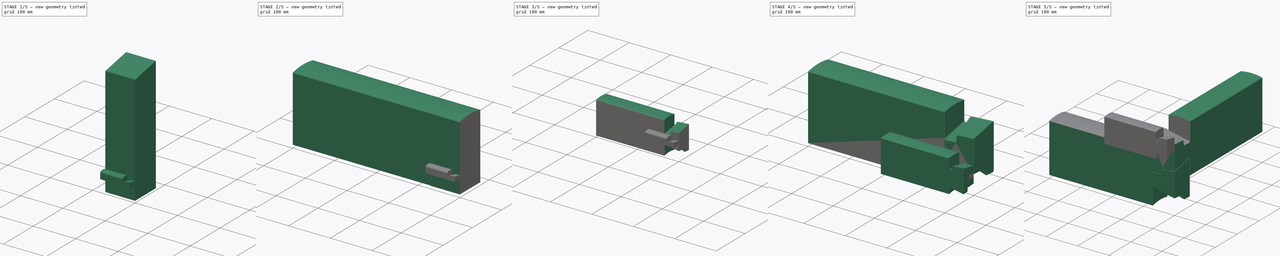
[diagram: build sequence overview — one tinted view per stage of 5, left to right]
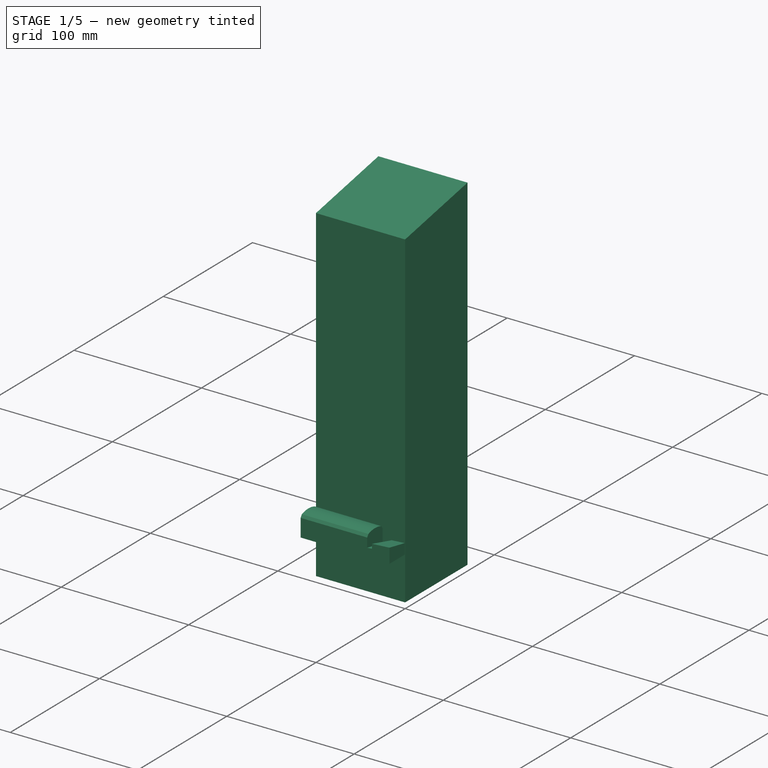
[diagram: stage 1 of 5 — iso view after this stage's code; geometry added in this stage tinted green]
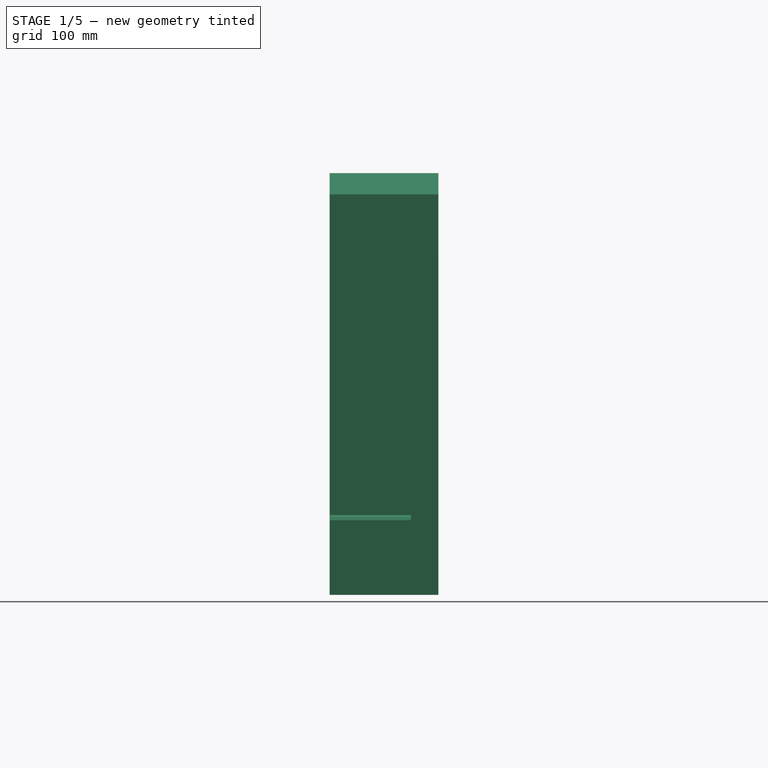
[diagram: stage 1 of 5 — front view after this stage's code; geometry added in this stage tinted green]
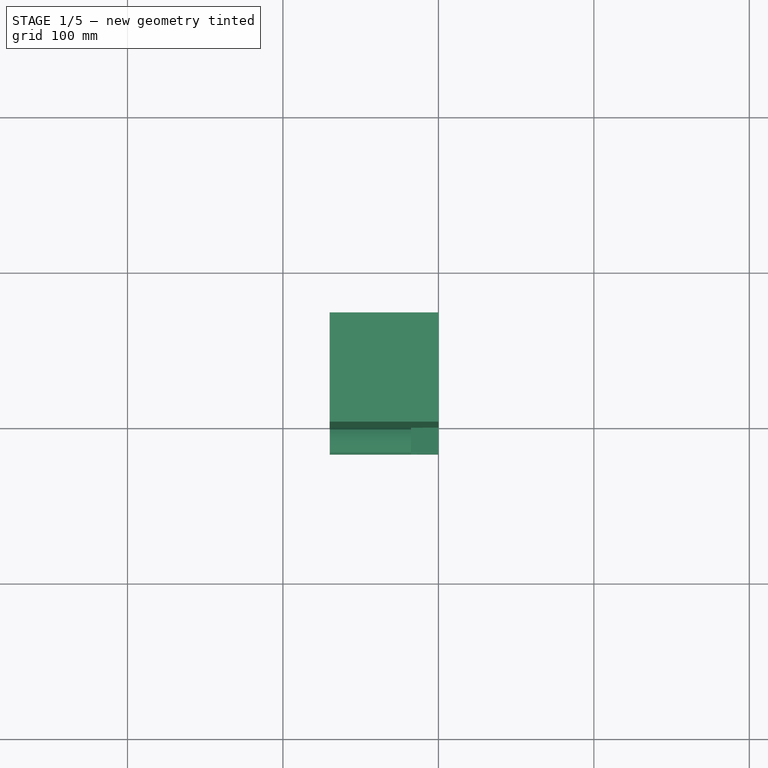
[diagram: stage 1 of 5 — top view after this stage's code; geometry added in this stage tinted green]
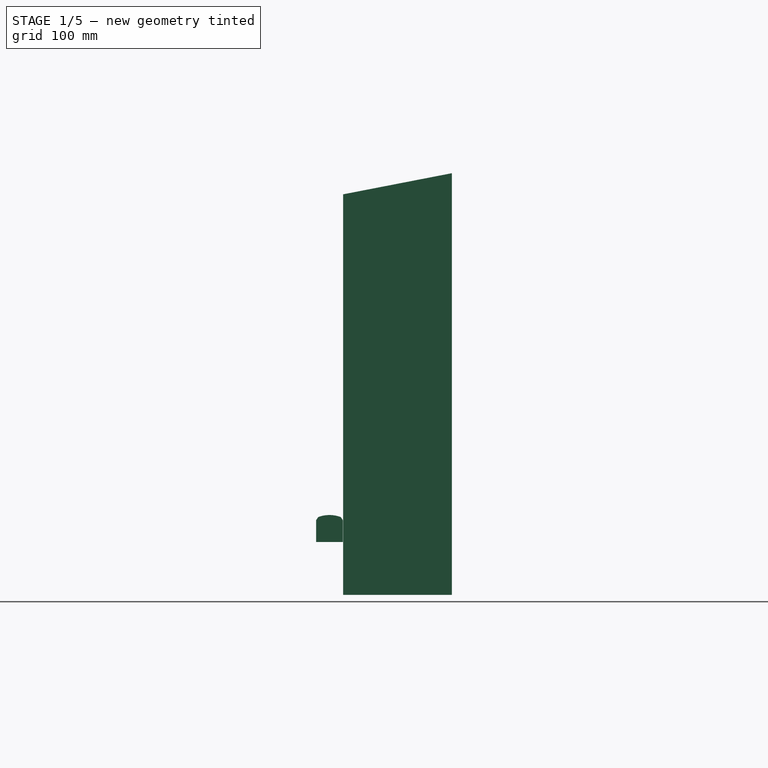
[diagram: stage 1 of 5 — right view after this stage's code; geometry added in this stage tinted green]
FCSTD DOCUMENT  (FreeCAD 0.19R24276 (Git))
Label: kvenlaft-parametric-freecad-model
License: Creative Commons Attribution-ShareAlike
LicenseURL: http://creativecommons.org/licenses/by-sa/4.0/
objects: Sketcher::SketchObject×5, PartDesign::Body×5, Part::Cut×4, Part::FeaturePython×4, PartDesign::Pad×3, Part::Mirroring×3, PartDesign::Chamfer×2, Part::Feature×2, App::FeaturePython×1, PartDesign::AdditiveLoft×1, PartDesign::FeatureBase×1, PartDesign::Fillet×1, Part::Offset×1, App::DocumentObjectGroup×1
note: 39 computed .brp shape members not serialized (recipe doc carries the construction recipe); baked Part::Feature solids carry a one-line shape summary decoded from their .brp

FEATURE [Sketcher::SketchObject] Sketch001  label="Joint cutter profile1"
  FullyConstrained = true
  MapMode = 5
  Placement = pos=(0,0,0) rot=(1,0,0;1.5708rad)
  Support = -> [XZ_Plane001]
  expr: Constraints[19] = dd.ddTimber_width
  expr: Constraints[20] = dd.ddBottom_angle
  expr: Constraints[15] = dd.ddTop_slot_depth_ratio * dd.ddTimber_heigth
  expr: Constraints[16] = dd.ddTimber_heigth
  expr: Constraints[14] = dd.ddTimber_heigth * dd.ddTop_joint_placement_ratio + dd.ddTimber_heigth
  expr: Constraints[9] = dd.ddTop_angle
  expr: Constraints[13] = -dd.ddTimber_width * dd.ddSlot_position_ratio
  expr: Constraints[11] = -dd.ddTimber_width
  expr: Constraints[10] = dd.ddTop_angle
  sketch-geometry (7):
    g0: LineSegment StartX=-70 StartY=257.6 StartZ=0 EndX=-70 EndY=96.6 EndZ=0
    g1: LineSegment StartX=-70 StartY=96.6 StartZ=0 EndX=-42 EndY=98.558 EndZ=0
    g2: LineSegment StartX=-42 StartY=98.558 StartZ=0 EndX=-42 EndY=114.658 EndZ=0
    g3: LineSegment StartX=-42 StartY=114.658 StartZ=0 EndX=0 EndY=117.595 EndZ=0
    g4: LineSegment StartX=0 StartY=117.595 StartZ=0 EndX=0 EndY=257.6 EndZ=0
    g5: LineSegment StartX=0 StartY=257.6 StartZ=0 EndX=-70 EndY=257.6 EndZ=0
    g6: LineSegment StartX=0 StartY=0 StartZ=0 EndX=70 EndY=13.6066 EndZ=0
  constraints (22):
    c: Vertical(g0)
    c: Coincident(g0,g1)
    c: Coincident(g1,g2)
    c: Coincident(g2,g3)
    c: Coincident(g3,g4)
    c: Vertical(g4)
    c: Coincident(g4,g5)
    c: Coincident(g5,g0)
    c: PointOnObject(g4,g-2)
    c: Angle(g-1,g3) = 0.0698132
    c: Angle(g-1,g1) = 0.0698132
    c: DistanceX(g-2,g0) = -70
    c: Angle(g2,g-2) = 0
    c: DistanceX(g-2,g2) = -42
    c: DistanceY(g-1,g4) = 257.6
    c: Distance(g2) = 16.1
    c: Distance(g0) = 161
    c: Horizontal(g5)
    c: Coincident(g6,g-1)
    c: DistanceX(g-2,g6) = 70
    c: Angle(g-1,g6) = 0.191986
    c: DistanceY(g-1,g6) = 13.6066  'heigth'
FEATURE [Sketcher::SketchObject] Sketch002  label="Joint cutter profile2"
  AttachmentOffset = pos=(0,13.6066,-70) rot=(0,0,1;0rad)
  FullyConstrained = true
  MapMode = 5
  Placement = pos=(0,70,13.6066) rot=(1,0,0;1.5708rad)
  Support = -> [XZ_Plane001]
  expr: .AttachmentOffset.Base.y = <<Joint cutter profile1>>.Constraints.heigth
  expr: Constraints[10] = dd.ddTop_angle
  expr: Constraints[11] = -dd.ddTimber_width
  expr: .AttachmentOffset.Base.z = -dd.ddTimber_width
  expr: Constraints[13] = -dd.ddTimber_width * dd.ddSlot_position_ratio
  expr: Constraints[9] = dd.ddTop_angle
  expr: Constraints[14] = dd.ddTimber_heigth * dd.ddTop_joint_placement_ratio + dd.ddTimber_heigth
  expr: Constraints[16] = dd.ddTimber_heigth
  expr: Constraints[15] = dd.ddTop_slot_depth_ratio * dd.ddTimber_heigth
  expr: Constraints[25] = -dd.ddTimber_width + (dd.ddTimber_width - dd.ddTimber_width * dd.ddSlot_position_ratio) * dd.ddWedge_ratio
  sketch-geometry (9):
    g0: LineSegment StartX=-70 StartY=257.6 StartZ=0 EndX=-70 EndY=96.6 EndZ=0
    g1: LineSegment StartX=-70 StartY=96.6 StartZ=0 EndX=-42 EndY=98.558 EndZ=0
    g2: LineSegment StartX=-42 StartY=98.558 StartZ=0 EndX=-42 EndY=114.658 EndZ=0
    g3: LineSegment StartX=-42 StartY=114.658 StartZ=0 EndX=0 EndY=117.595 EndZ=0
    g4: LineSegment StartX=0 StartY=117.595 StartZ=0 EndX=0 EndY=257.6 EndZ=0
    g5: LineSegment StartX=0 StartY=257.6 StartZ=0 EndX=-70 EndY=257.6 EndZ=0
    g6: LineSegment StartX=0 StartY=117.595 StartZ=0 EndX=-56 EndY=113.679 EndZ=0
    g7: LineSegment StartX=-56 StartY=113.679 StartZ=0 EndX=-56 EndY=97.579 EndZ=0
    g8: LineSegment StartX=-56 StartY=97.579 StartZ=0 EndX=-70 EndY=96.6 EndZ=0
  constraints (26):
    c: Vertical(g0)
    c: Coincident(g0,g1)
    c: Coincident(g1,g2)
    c: Coincident(g2,g3)
    c: Coincident(g3,g4)
    c: Vertical(g4)
    c: Coincident(g4,g5)
    c: Coincident(g5,g0)
    c: PointOnObject(g4,g-2)
    c: Angle(g-1,g3) = 0.0698132
    c: Angle(g-1,g1) = 0.0698132
    c: DistanceX(g-2,g0) = -70
    c: Angle(g2,g-2) = 0
    c: DistanceX(g-2,g2) = -42
    c: DistanceY(g-1,g4) = 257.6
    c: Distance(g2) = 16.1
    c: Distance(g0) = 161
    c: Horizontal(g5)
    c: Coincident(g4,g6)
    c: PointOnObject(g6,g3)
    c: Coincident(g6,g7)
    c: PointOnObject(g7,g1)
    c: Coincident(g7,g8)
    c: Coincident(g8,g0)
    c: Vertical(g7)
    c: DistanceX(g-2,g6) = -56
FEATURE [PartDesign::AdditiveLoft] AdditiveLoft
  Closed = false
  Placement = pos=(0,0,0) rot=(1,0,0;1.5708rad)
  Profile = -> Sketch001
  Ruled = false
  Sections = -> [Sketch002]
FEATURE [Sketcher::SketchObject] Sketch009
  FullyConstrained = true
  MapMode = 5
  Placement = pos=(0,0,0) rot=(0.57735,0.57735,0.57735;2.0944rad)
  Support = -> [YZ_Plane007]
  expr: Constraints[9] = dd.ddTimber_width
  expr: Constraints[10] = dd.ddTimber_heigth
  sketch-geometry (4):
    g0: LineSegment StartX=0 StartY=0 StartZ=0 EndX=70 EndY=0 EndZ=0
    g1: LineSegment StartX=70 StartY=0 StartZ=0 EndX=70 EndY=161 EndZ=0
    g2: LineSegment StartX=70 StartY=161 StartZ=0 EndX=0 EndY=161 EndZ=0
    g3: LineSegment StartX=0 StartY=161 StartZ=0 EndX=0 EndY=0 EndZ=0
  constraints (11):
    c: Coincident(g0,g1)
    c: Coincident(g1,g2)
    c: Coincident(g2,g3)
    c: Coincident(g3,g0)
    c: Horizontal(g0)
    c: Horizontal(g2)
    c: Vertical(g1)
    c: Vertical(g3)
    c: Coincident(g0,g-1)
    c: DistanceX(g-2,g1) = 70
    c: DistanceY(g-1,g2) = 161
FEATURE [PartDesign::Pad] Pad001
  Direction = (1,1,1)
  Length = 70
  Length2 = 100
  Placement = pos=(0,0,0) rot=(0.57735,0.57735,0.57735;2.0944rad)
  Profile = -> Sketch009
  Reversed = true
  Type = 0
  expr: Length = dd.ddTimber_width
FEATURE [Part::Feature] Part__Mirroring003  label="Offset (Mirror #3)001"
  Placement = pos=(0,0,16.5) rot=(0,0,1;0rad)
  shape: bbox 69.76 x 17.26 x 34 mm, 18 faces (baked)
  expr: .Placement.Base.z = 33 / 2
FEATURE [Sketcher::SketchObject] Sketch010
  FullyConstrained = false
  MapMode = 5
  Support = -> [XY_Plane008]
  sketch-geometry (4):
    g0: LineSegment StartX=-87.5607 StartY=31.3298 StartZ=0 EndX=17.935 EndY=31.3298 EndZ=0
    g1: LineSegment StartX=17.935 StartY=31.3298 StartZ=0 EndX=17.935 EndY=-30.5125 EndZ=0
    g2: LineSegment StartX=17.935 StartY=-30.5125 StartZ=0 EndX=-87.5607 EndY=-30.5125 EndZ=0
    g3: LineSegment StartX=-87.5607 StartY=-30.5125 StartZ=0 EndX=-87.5607 EndY=31.3298 EndZ=0
  constraints (8):
    c: Coincident(g0,g1)
    c: Coincident(g1,g2)
    c: Coincident(g2,g3)
    c: Coincident(g3,g0)
    c: Horizontal(g0)
    c: Horizontal(g2)
    c: Vertical(g1)
    c: Vertical(g3)
FEATURE [PartDesign::Pad] Pad002
  Direction = (1,1,1)
  Length = 34
  Length2 = 100
  Profile = -> Sketch010
  Type = 0
FEATURE [PartDesign::Body] Body002006
  Group = -> [Sketch010,Pad002]
  Origin = -> Origin008
  Tip = -> Pad002
FEATURE [Part::Cut] Cut004
  Base = -> Part__Mirroring003
  Tool = -> Body002006
FEATURE [App::DocumentObjectGroup] Group  label="Scale model"
  Group = -> [Offset001,Part__Mirroring,Cut004]
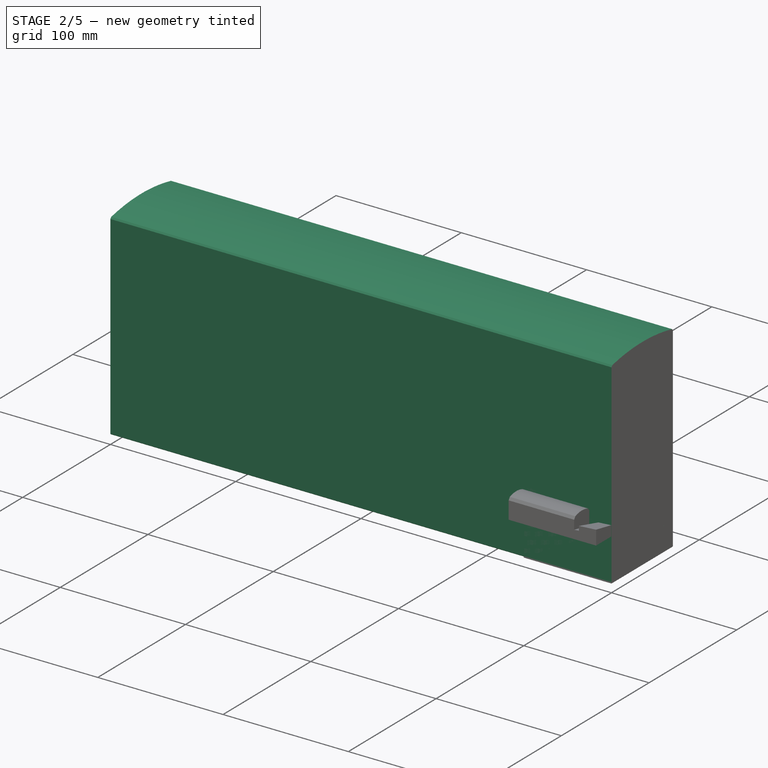
[diagram: stage 2 of 5 — iso view after this stage's code; geometry added in this stage tinted green]
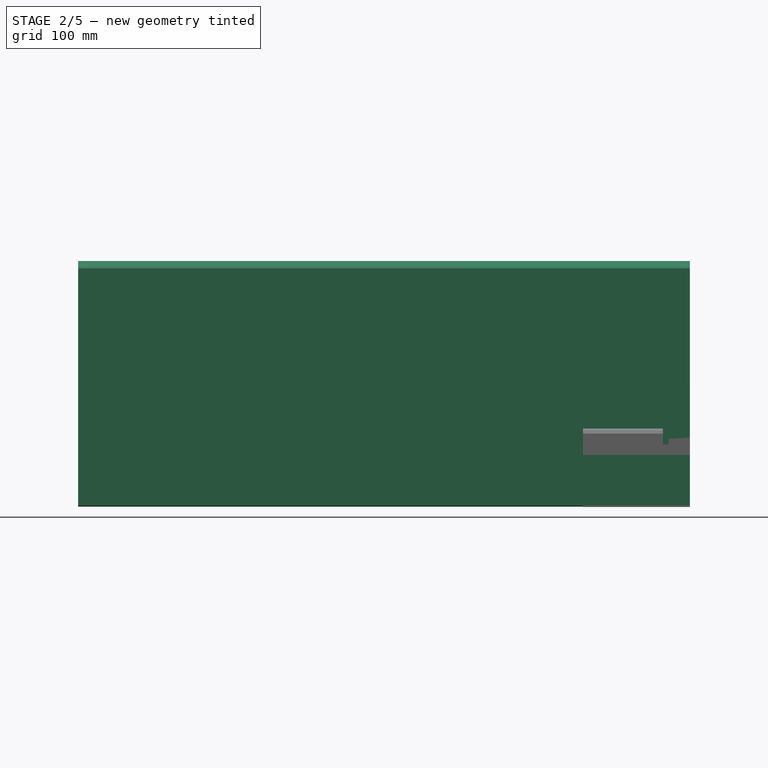
[diagram: stage 2 of 5 — front view after this stage's code; geometry added in this stage tinted green]
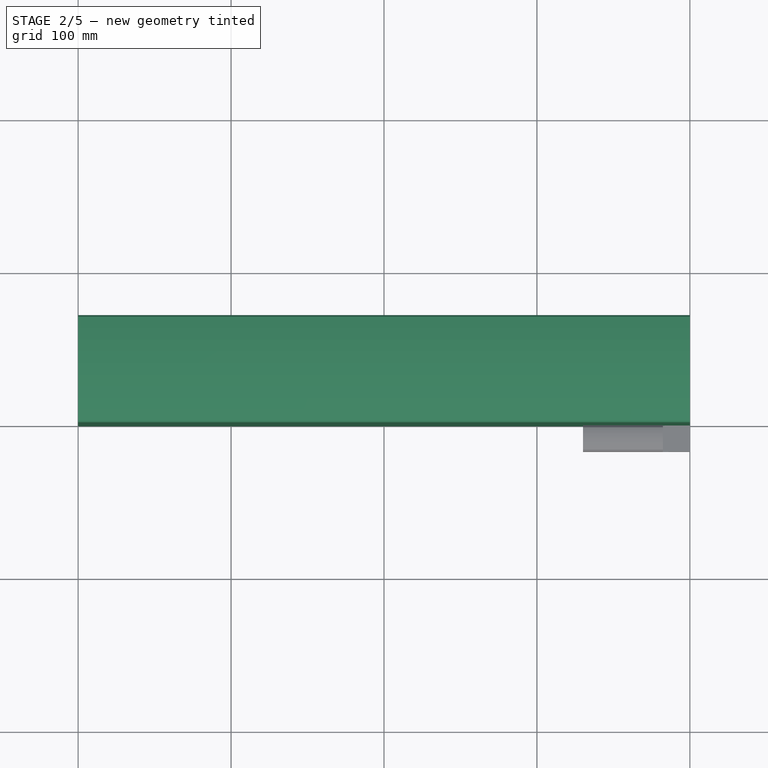
[diagram: stage 2 of 5 — top view after this stage's code; geometry added in this stage tinted green]
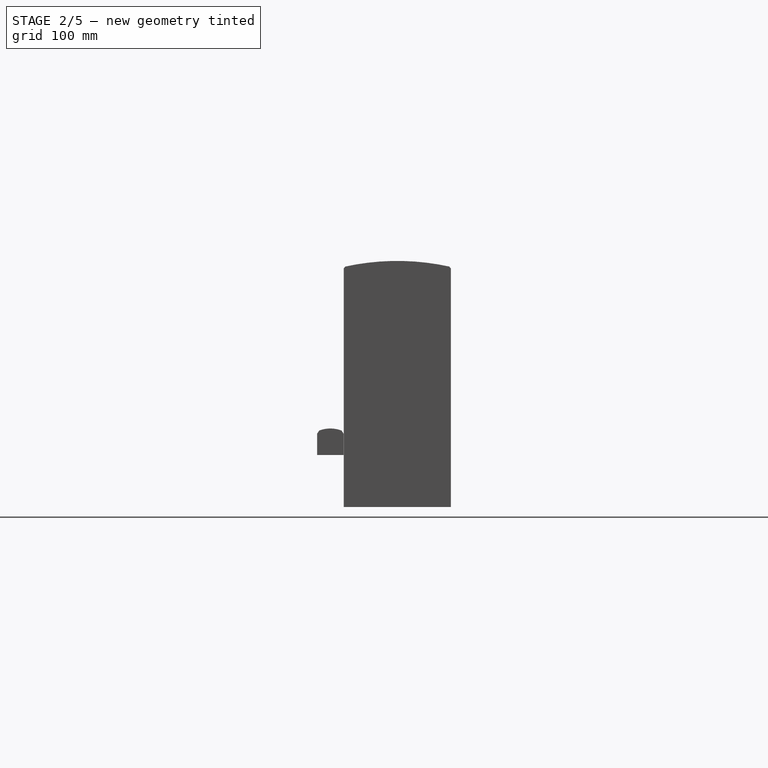
[diagram: stage 2 of 5 — right view after this stage's code; geometry added in this stage tinted green]
FEATURE [App::FeaturePython] dd  label="Parameters"  # WARN: FeaturePython — macro-defined, semantics opaque (R4)
  DynamicData = Created with DynamicData (v2.31) workbench. | This is a simple container object built | for holding custom properties.  Worbench | installation is not required to use the | container object -- instead only for | adding / removing custom properties. | (But this can also be done via scripting.)
  ddArc_depth = 4
  ddBottom_angle = 11
  ddChamfer_size = 1
  ddFillet_radius = 4
  ddMating_arc_margin_top = 0.1
  ddMating_arc_ratio = 3
  ddSlot_position_ratio = 0.6
  ddTimber_heigth = 161
  ddTimber_length = 400
  ddTimber_width = 70
  ddTop_angle = 4
  ddTop_joint_placement_ratio = 0.6
  ddTop_slot_depth_ratio = 0.1
  ddWedge_ratio = 0.5
FEATURE [Sketcher::SketchObject] Sketch
  FullyConstrained = true
  MapMode = 5
  Placement = pos=(0,0,0) rot=(0.57735,0.57735,0.57735;2.0944rad)
  Support = -> [YZ_Plane]
  expr: .Constraints.finalheigth = dd.ddTimber_heigth - dd.ddArc_depth
  expr: Constraints[12] = dd.ddTimber_heigth - dd.ddMating_arc_margin_top
  expr: Constraints[11] = dd.ddTimber_width
  expr: Constraints[20] = dd.ddArc_depth - dd.ddMating_arc_margin_top + dd.ddArc_depth * 0.2
  sketch-geometry (6):
    g0: LineSegment StartX=-7.1e-15 StartY=1.42e-14 StartZ=0 EndX=0 EndY=157 EndZ=0
    g1: LineSegment StartX=70 StartY=157 StartZ=0 EndX=70 EndY=0 EndZ=0
    g2: ArcOfCircle CenterX=35 CenterY=1.89872 CenterZ=0 NormalX=0 NormalY=0 NormalZ=1 AngleXU=0 Radius=159.001 StartAngle=1.34885 EndAngle=1.79274
    g3: ArcOfCircle CenterX=35 CenterY=-127.969 CenterZ=0 NormalX=0 NormalY=0 NormalZ=1 AngleXU=0 Radius=132.669 StartAngle=1.30382 EndAngle=1.83777
    g4: LineSegment StartX=0 StartY=160.9 StartZ=0 EndX=70 EndY=160.9 EndZ=0
    g5: LineSegment StartX=0 StartY=4.7 StartZ=0 EndX=70 EndY=4.7 EndZ=0
  constraints (21):
    c: PointOnObject(g0,g-2)
    c: Vertical(g1)
    c: Coincident(g2,g0)
    c: Coincident(g2,g1)
    c: Coincident(g3,g0)
    c: Coincident(g3,g1)
    c: Coincident(g0,g-1)
    c: PointOnObject(g1,g-1)
    c: Horizontal(g1,g0)
    c: PointOnObject(g4,g-2)
    c: Horizontal(g4)
    c: DistanceX(g-2,g4) = 70
    c: DistanceY(g-1,g4) = 160.9
    c: Tangent(g2,g4)
    c: Vertical(g1,g4)
    c: DistanceY(g-1,g1) = 157  'finalheigth'
    c: PointOnObject(g5,g-2)
    c: Horizontal(g5)
    c: Vertical(g5,g4)
    c: Tangent(g3,g5)
    c: DistanceY(g-1,g5) = 4.7
FEATURE [PartDesign::Pad] Pad
  Direction = (1,1,1)
  Length = 400
  Length2 = 100
  Placement = pos=(0,0,0) rot=(0.57735,0.57735,0.57735;2.0944rad)
  Profile = -> Sketch
  Reversed = true
  Type = 0
  expr: Length = dd.ddTimber_length
FEATURE [PartDesign::Body] Body001  label="Joint cutter"
  Group = -> [Sketch001,Sketch002,AdditiveLoft]
  Origin = -> Origin001
  Tip = -> AdditiveLoft
FEATURE [PartDesign::Chamfer] Chamfer
  Angle = 45
  Base = -> Pad [Edge2,Edge5,Edge1,Edge8]
  BaseFeature = -> Pad
  ChamferType = 0
  FlipDirection = false
  Placement = pos=(0,0,0) rot=(0.57735,0.57735,0.57735;2.0944rad)
  Size = 1
  Size2 = 1
  SupportTransform = false
  expr: Size = dd.ddChamfer_size
FEATURE [Part::Mirroring] Part__Mirroring002  label="Joint cutter (Mirror #3)"
  Base = (0,0,0)
  Normal = (0,1,0)
  Placement = pos=(0,0,-78.5) rot=(0,0,-1;1.5708rad)
  Source = -> Body001
  expr: .Placement.Base.z = -Sketch.Constraints.finalheigth / 2
FEATURE [PartDesign::Body] Body002005  label="Postive shape for second cutter"
  Group = -> [Sketch009,Pad001]
  Origin = -> Origin007
  Tip = -> Pad001
FEATURE [Part::Cut] Cut003  label="Joint cutter 2"
  Base = -> Body002005
  Tool = -> Part__Mirroring002
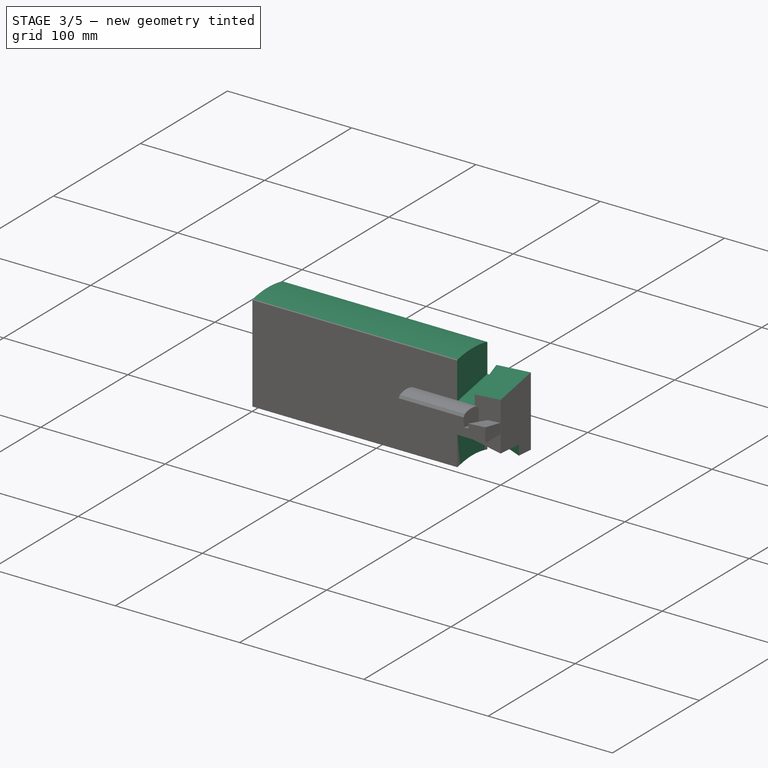
[diagram: stage 3 of 5 — iso view after this stage's code; geometry added in this stage tinted green]
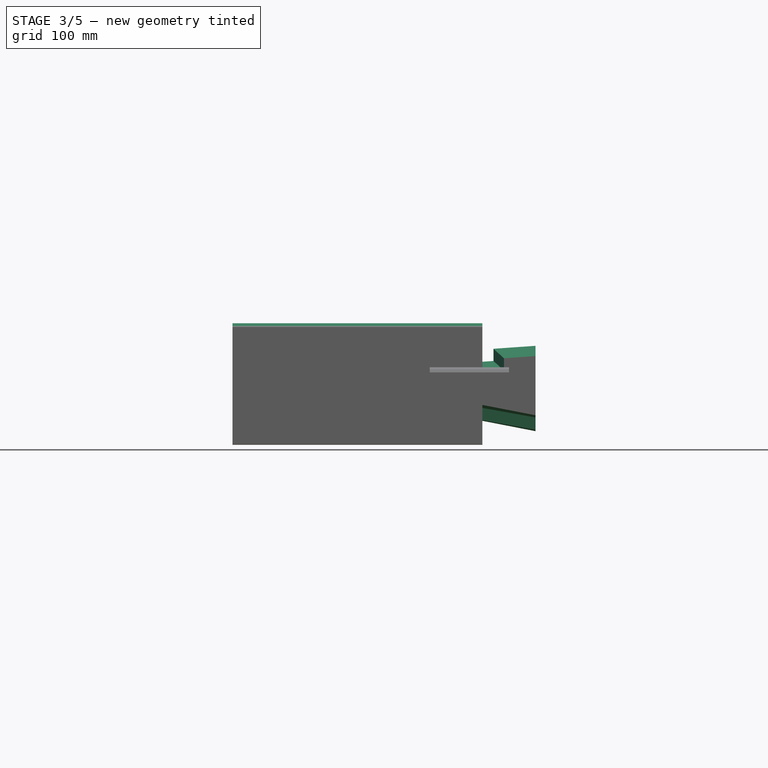
[diagram: stage 3 of 5 — front view after this stage's code; geometry added in this stage tinted green]
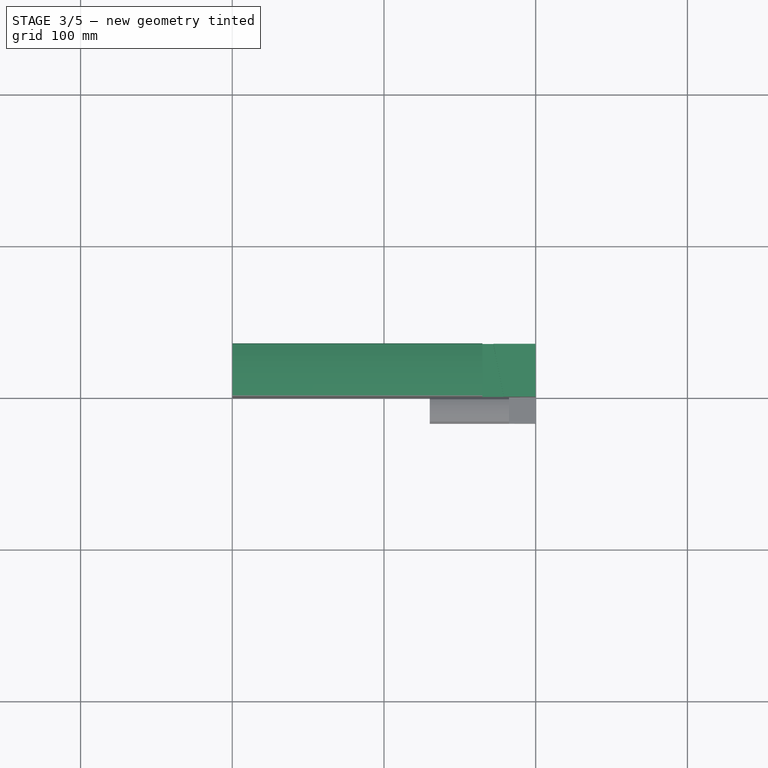
[diagram: stage 3 of 5 — top view after this stage's code; geometry added in this stage tinted green]
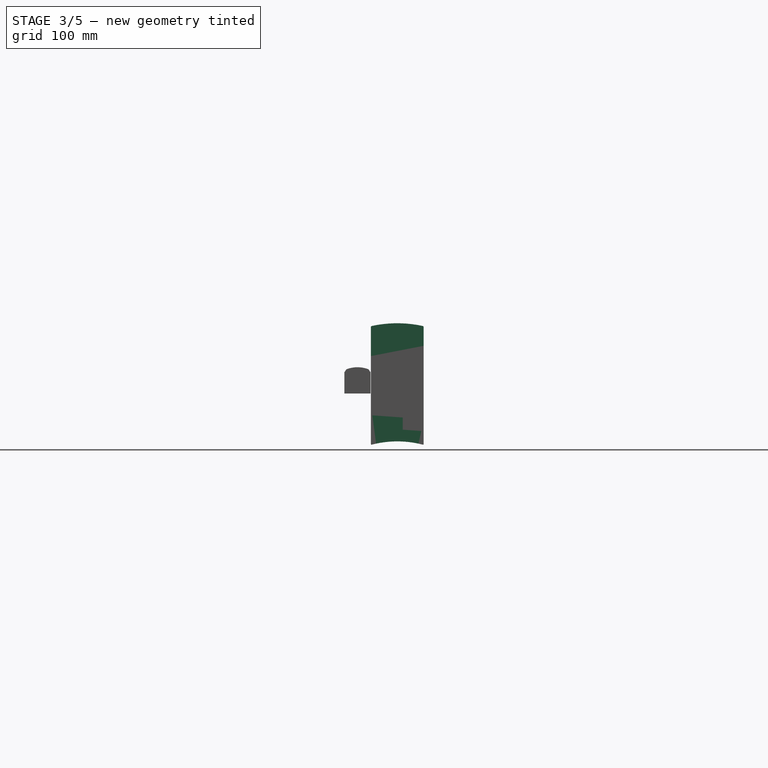
[diagram: stage 3 of 5 — right view after this stage's code; geometry added in this stage tinted green]
FEATURE [PartDesign::Body] Body  label="Timber start extrusion"
  Group = -> [Sketch,Pad,Chamfer]
  Origin = -> Origin
  Tip = -> Chamfer
FEATURE [Part::Cut] Cut  label="Timber with top joint cut"
  Base = -> Body
  Refine = true
  Tool = -> Body001
FEATURE [Part::Cut] Cut001  label="Timber with bottom joint cut"
  Base = -> Cut
  Refine = true
  Tool = -> Cut003
FEATURE [Part::FeaturePython] Clone  label="Timber with fillets002"  # Draft clone (typed FeaturePython)
  AttacherType = Attacher::AttachEngine3D
  Fuse = false
  Objects = -> [Cut001]
  Scale = (0.5,0.5,0.5)
FEATURE [Part::Offset] Offset
  Fill = false
  Intersection = false
  Join = 2
  Mode = 0
  SelfIntersection = false
  Source = -> Clone
  Value = -0.12
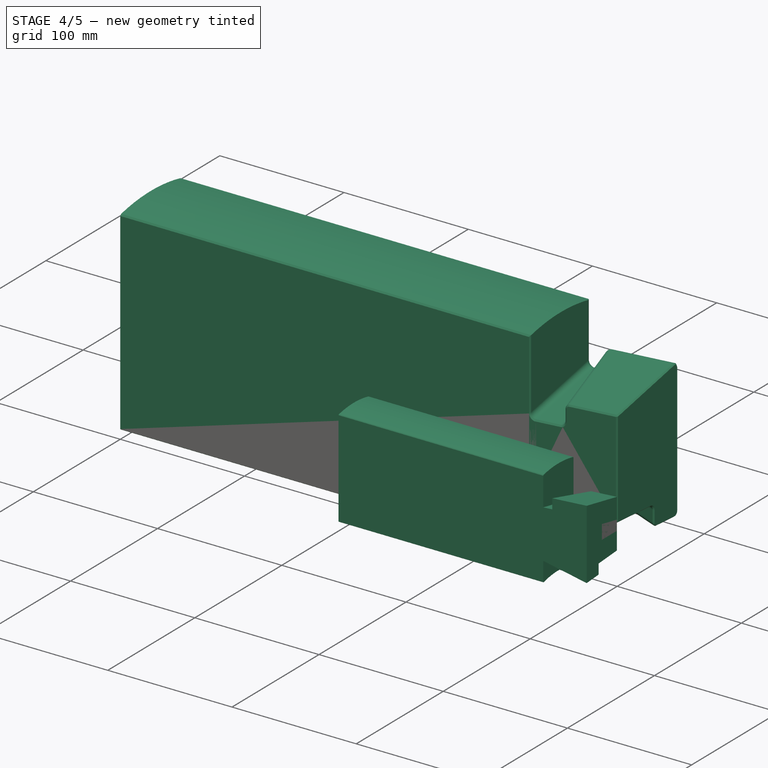
[diagram: stage 4 of 5 — iso view after this stage's code; geometry added in this stage tinted green]
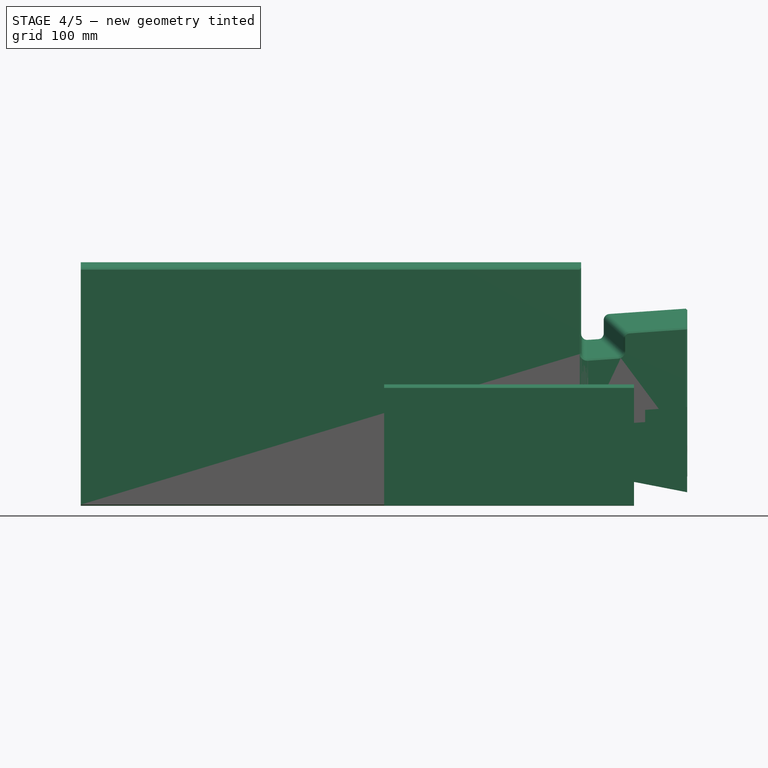
[diagram: stage 4 of 5 — front view after this stage's code; geometry added in this stage tinted green]
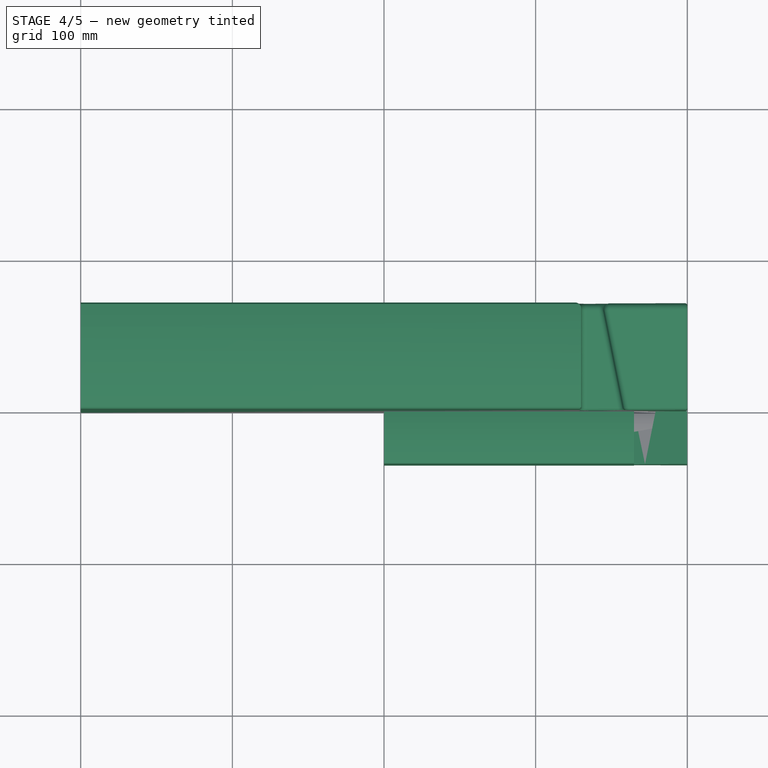
[diagram: stage 4 of 5 — top view after this stage's code; geometry added in this stage tinted green]
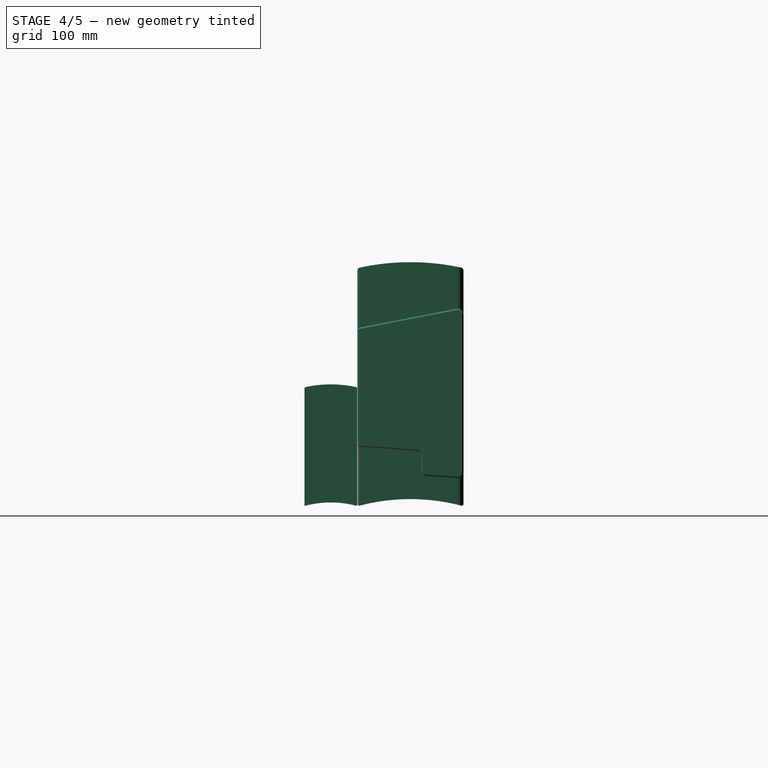
[diagram: stage 4 of 5 — right view after this stage's code; geometry added in this stage tinted green]
FEATURE [PartDesign::FeatureBase] BaseFeature
  BaseFeature = -> Cut001
FEATURE [PartDesign::Fillet] Fillet
  Base = -> BaseFeature [Edge21,Edge17,Edge19,Edge42,Edge37,Edge36,Edge43,Edge18,Edge44,Edge38,Edge16,Edge20,Edge25,Edge39]
  BaseFeature = -> BaseFeature
  Radius = 4
  SupportTransform = false
  expr: Radius = dd.ddFillet_radius
FEATURE [PartDesign::Chamfer] Chamfer001
  Angle = 45
  Base = -> Fillet [Face4,Edge12,Edge10,Edge8,Edge6,Edge2,Edge1,Edge5,Edge7,Edge9]
  BaseFeature = -> Fillet
  ChamferType = 0
  FlipDirection = false
  Size = 1
  Size2 = 1
  SupportTransform = false
FEATURE [Part::Feature] Offset001
  Placement = pos=(0,0,33) rot=(0,0,1;0rad)
  shape: bbox 69.76 x 17.26 x 34 mm, 18 faces (baked)
FEATURE [Part::Mirroring] Part__Mirroring  label="Offset (Mirror #3)"
  Base = (0,0,0)
  Normal = (0,1,0)
  Source = -> Offset
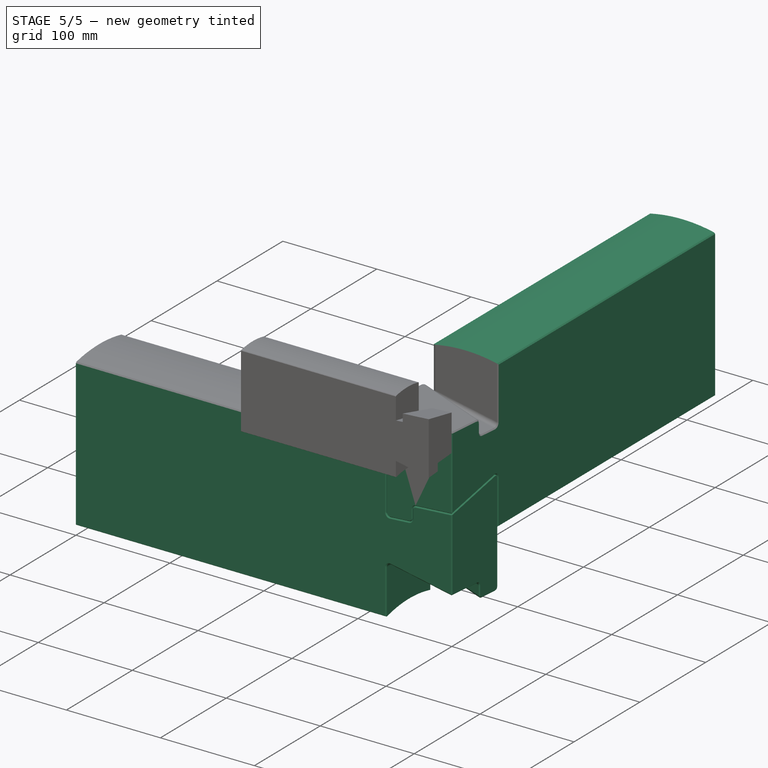
[diagram: stage 5 of 5 — iso view after this stage's code; geometry added in this stage tinted green]
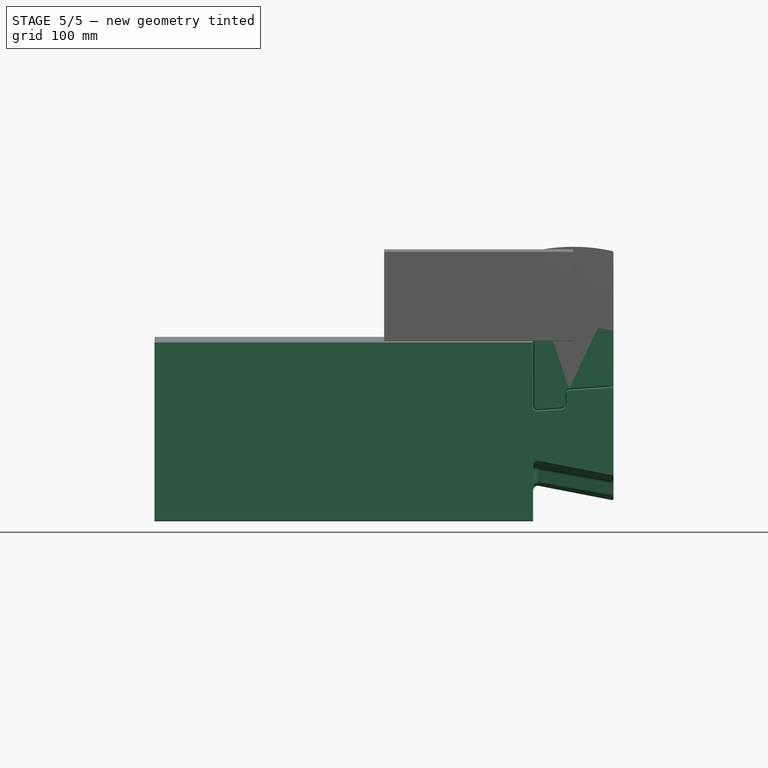
[diagram: stage 5 of 5 — front view after this stage's code; geometry added in this stage tinted green]
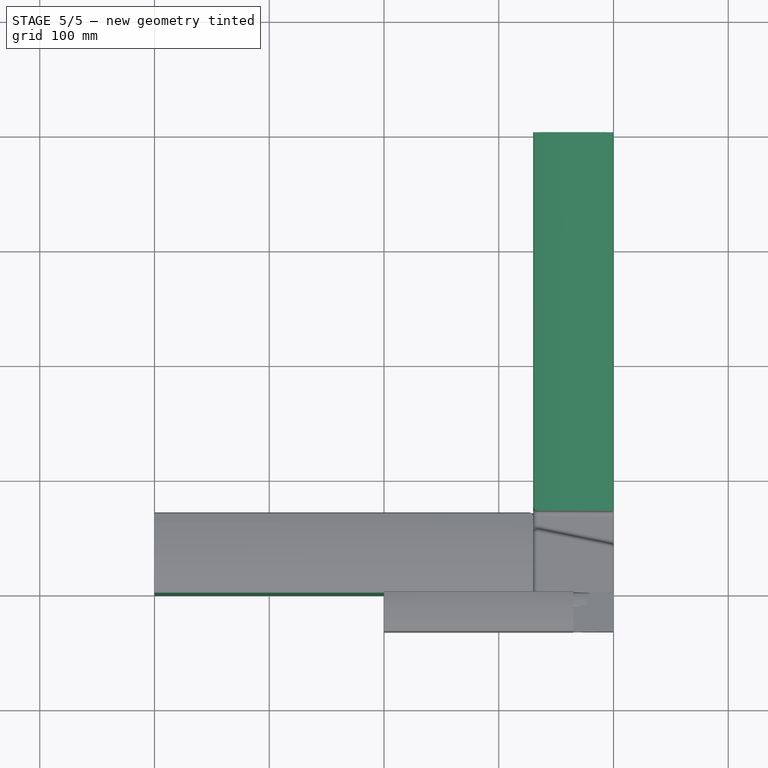
[diagram: stage 5 of 5 — top view after this stage's code; geometry added in this stage tinted green]
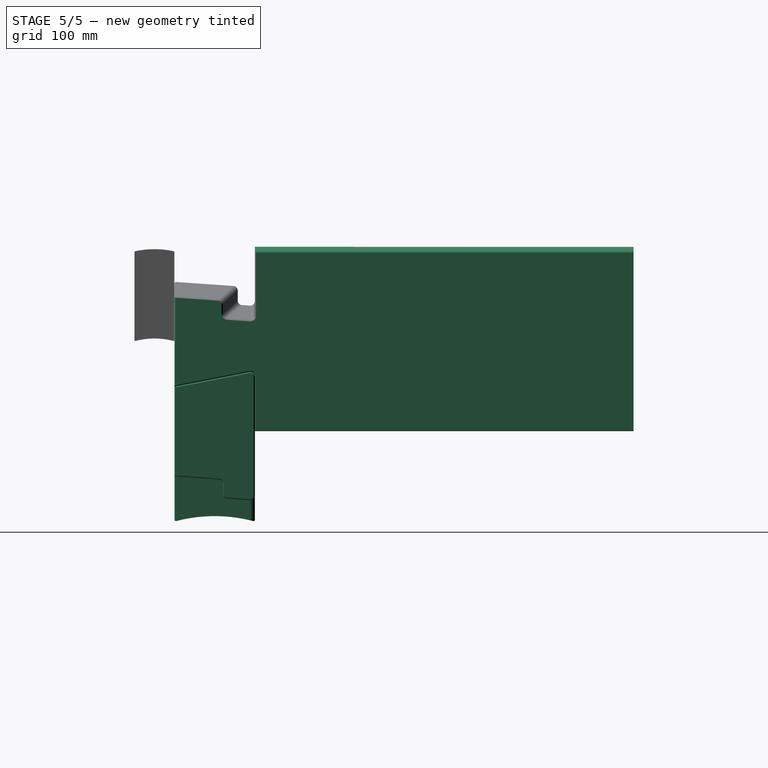
[diagram: stage 5 of 5 — right view after this stage's code; geometry added in this stage tinted green]
FEATURE [PartDesign::Body] Body002  label="Timber with fillets"
  BaseFeature = -> Cut001
  Group = -> [BaseFeature,Fillet,Chamfer001]
  Origin = -> Origin002
  Tip = -> Chamfer001
FEATURE [Part::FeaturePython] Clone003  label="Timber with fillets001"  # Draft clone (typed FeaturePython)
  AttacherType = Attacher::AttachEngine3D
  Fuse = false
  Objects = -> [Body002]
  Scale = (1,1,1)
FEATURE [Part::Mirroring] Part__Mirroring001  label="Timber with bottom joint cut001 (Mirror #2)"
  Base = (0,0,0)
  Normal = (1,0,0)
  Placement = pos=(0,0,78.5) rot=(0,0,1;1.5708rad)
  Source = -> Clone003
  expr: .Placement.Base.z = Sketch.Constraints.finalheigth * 0.5
FEATURE [Part::FeaturePython] Clone001  label="Timber with bottom joint cut002"  # Draft clone (typed FeaturePython)
  AttacherType = Attacher::AttachEngine3D
  Fuse = false
  Objects = -> [Clone003]
  Placement = pos=(0,0,-157) rot=(0,0,1;0rad)
  Scale = (1,1,1)
  expr: .Placement.Base.z = -Sketch.Constraints.finalheigth
FEATURE [Part::FeaturePython] Clone002  label="Timber with bottom joint cut001 (Mirror #2)001"  # Draft clone (typed FeaturePython)
  AttacherType = Attacher::AttachEngine3D
  Fuse = false
  Objects = -> [Part__Mirroring001]
  Placement = pos=(0,0,-78.5) rot=(0,0,1;1.5708rad)
  Scale = (1,1,1)
  expr: .Placement.Base.z = -Sketch.Constraints.finalheigth * 0.5
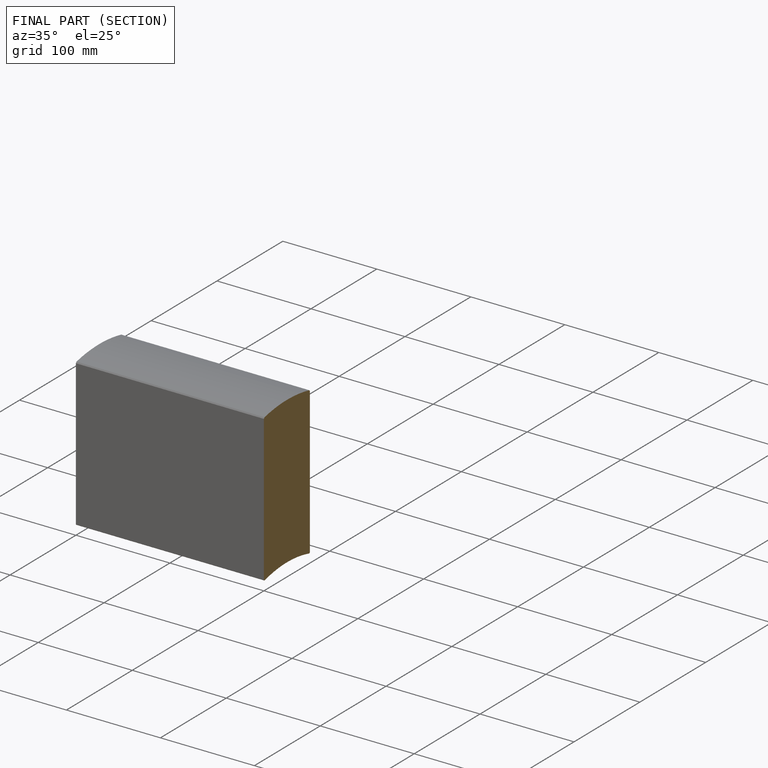
[diagram: finished part — half-section view (interior)]
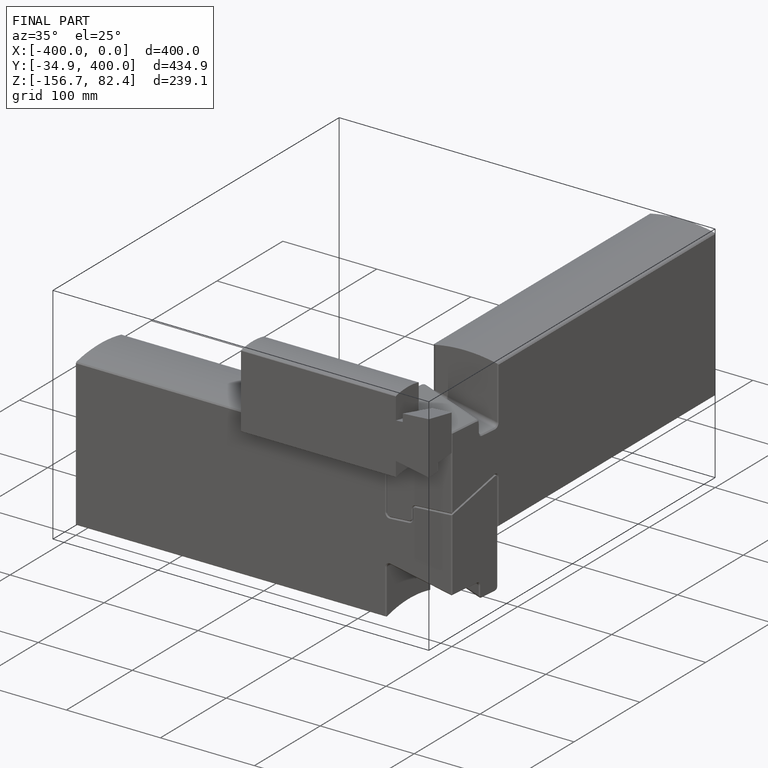
[diagram: finished part — iso view with bounding-box wireframe]
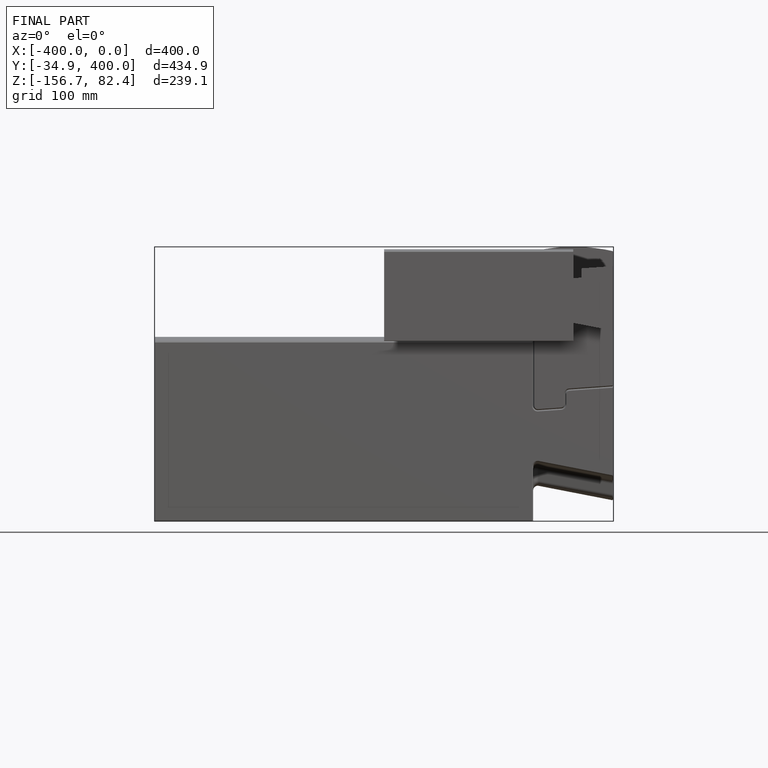
[diagram: finished part — front view with bounding-box wireframe]
